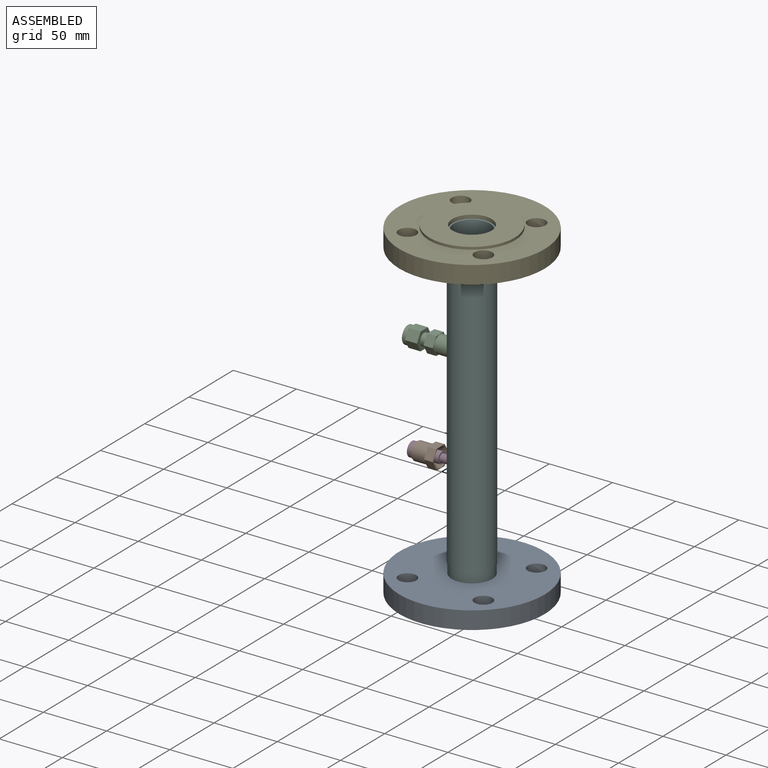
[diagram: assembled view]
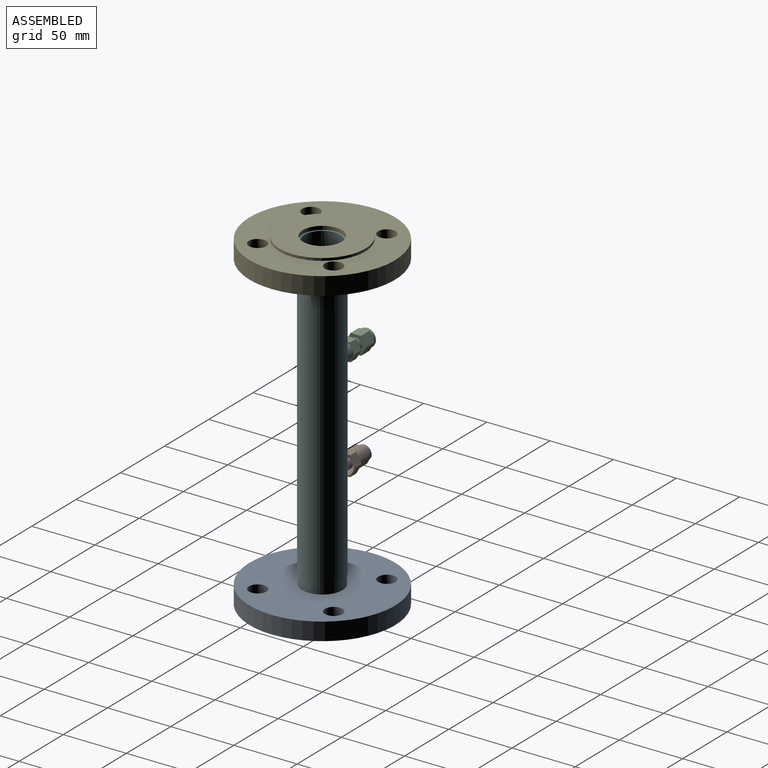
[diagram: assembled view, second angle]
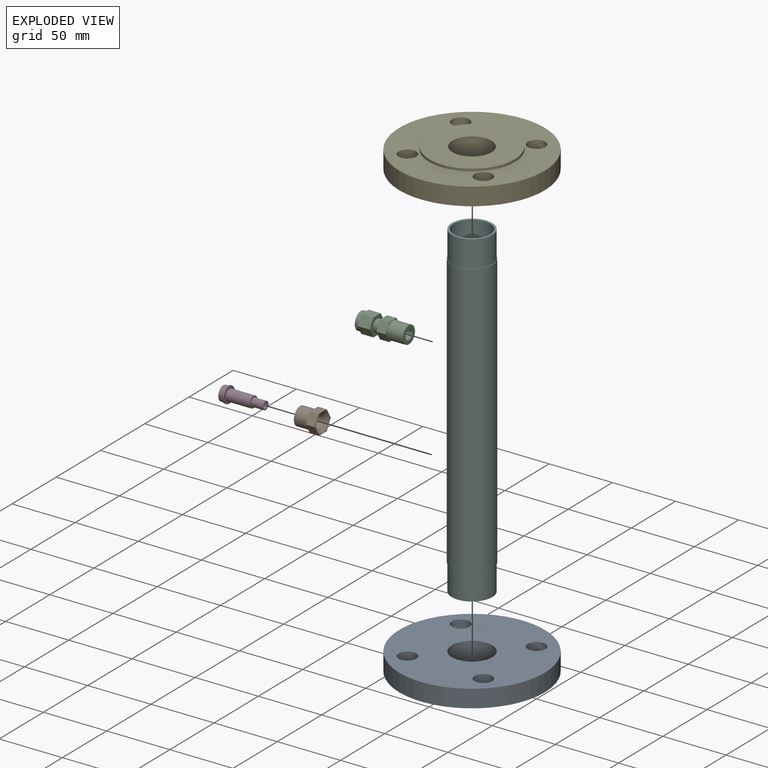
[diagram: exploded view]
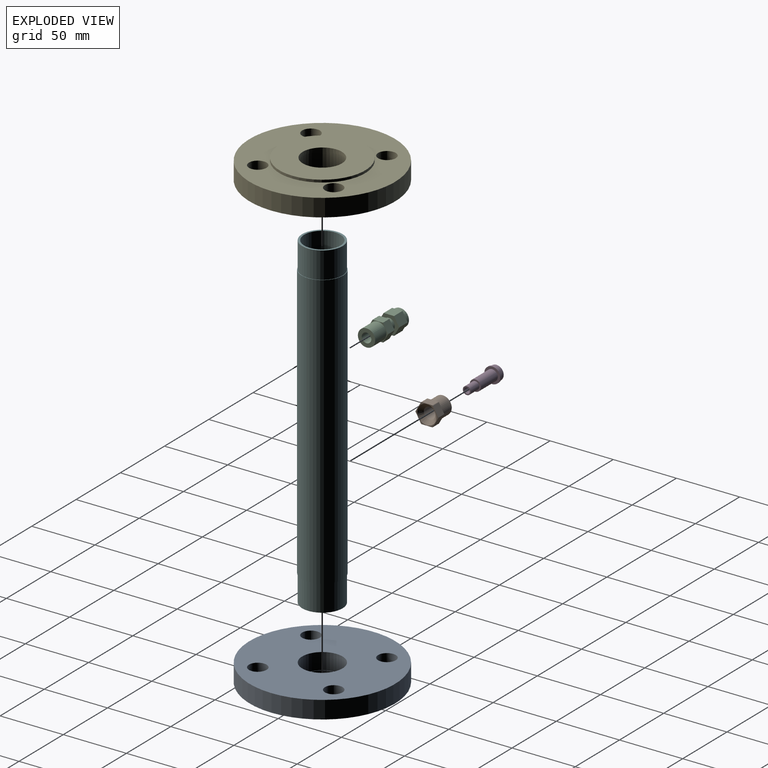
[diagram: exploded view, second angle]
ASSEMBLY  parts=6 mates=5
PART A: 12 faces, bbox 115x115x16 mm
  f0: cylinder r=15.5mm len=31mm, axis (0,0,1), area 292.2mm2, adj f1,f7
  f1: plane 68x68mm, normal (0,0,-1), area 2876.9mm2, adj f0,f2
  f2: cylinder r=34mm len=68mm, axis (0,0,1), area 427.3mm2, adj f1,f3
  f3: plane 115x115mm, normal (0,0,-1), area 6139.5mm2, adj f2,f4,f8,f9,f10,f11
  f4: cylinder r=57.5mm len=115mm, axis (0,0,1), area 5058mm2, adj f3,f5
  f5: plane 115x115mm, normal (0,0,1), area 8966.9mm2, adj f4,f6,f8,f9,f10,f11
  f6: cylinder r=16mm len=32mm, axis (0,0,1), area 1306.9mm2, adj f5,f7
  f7: plane 32x32mm, normal (0,0,1), area 49.5mm2, adj f0,f6
  f8: cylinder r=7mm len=14mm, axis (0,0,1), area 615.8mm2, adj f3,f5
  f9: cylinder r=7mm len=14mm, axis (0,0,1), area 615.8mm2, adj f3,f5
  f10: cylinder r=7mm len=14mm, axis (0,0,1), area 615.8mm2, adj f3,f5
  f11: cylinder r=7mm len=14mm, axis (0,0,1), area 615.8mm2, adj f3,f5
PART B: 18 faces, bbox 17.9x18x15.8 mm
  f0: cylinder r=9mm len=6.8mm, axis (-1,0,0), area 2.9mm2, adj f5,f8,f14,f17
  f1: cylinder r=9mm len=6.8mm, axis (-1,0,0), area 2.9mm2, adj f5,f8,f16,f17
  f2: cylinder r=9mm len=6.8mm, axis (-1,0,0), area 2.9mm2, adj f5,f8,f15,f16
  f3: cylinder r=9mm len=6.8mm, axis (-1,0,0), area 2.9mm2, adj f5,f8,f12,f14
  f4: cylinder r=9mm len=6.8mm, axis (-1,0,0), area 2.9mm2, adj f5,f8,f13,f15
  f5: plane 18x15.8mm, normal (-1,0,0), area 57.7mm2, adj f0,f1,f2,f3,f4,f9,f10,f12
  f6: cylinder r=4.58mm len=14.9mm, axis (-1,0,0), area 428.3mm2, adj f7,f11
  f7: cone r=7.58mm half-angle=45deg, axis (1,0,0), area 161.9mm2, adj f6,f8
  f8: plane 18x15.8mm, normal (1,0,0), area 35.8mm2, adj f0,f1,f2,f3,f4,f7,f9,f12
  f9: cylinder r=9mm len=6.8mm, axis (-1,0,0), area 2.9mm2, adj f5,f8,f12,f13
  f10: cylinder r=7.1mm len=14.2mm, axis (-1,0,0), area 495.2mm2, adj f5,f11
  f11: plane 14.2x14.2mm, normal (-1,0,0), area 92.6mm2, adj f6,f10
  f12: plane 8.62x6.8mm, normal (0,0,1), area 58.6mm2, adj f3,f5,f8,f9
  f13: plane 7.47x6.8mm, normal (0,-0.87,0.5), area 58.6mm2, adj f4,f5,f8,f9
  f14: plane 7.47x6.8mm, normal (0,0.87,0.5), area 58.6mm2, adj f0,f3,f5,f8
  f15: plane 7.47x6.8mm, normal (0,-0.87,-0.5), area 58.6mm2, adj f2,f4,f5,f8
  f16: plane 8.62x6.8mm, normal (0,0,-1), area 58.6mm2, adj f1,f2,f5,f8
  f17: plane 7.47x6.8mm, normal (0,0.87,-0.5), area 58.6mm2, adj f0,f1,f5,f8
PART C: 24 faces, bbox 16.4x14.2x38 mm
  f0: plane 13.9x13.9mm, normal (0,0,1), area 118.6mm2, adj f1,f11
  f1: cylinder r=3.25mm len=30.3mm, axis (0,0,-1), area 618.7mm2, adj f0,f2
  f2: plane 7.6x7.6mm, normal (0,0,-1), area 12.2mm2, adj f1,f3
  f3: cylinder r=3.8mm len=7.7mm, axis (0,0,-1), area 183.8mm2, adj f2,f4
  f4: plane 13.7x13.7mm, normal (0,0,-1), area 102mm2, adj f3,f5
  f5: cylinder r=6.85mm len=13.7mm, axis (0,0,-1), area 546.6mm2, adj f4,f6
  f6: plane 16.4x14.2mm, normal (0,0,-1), area 27.2mm2, adj f5,f18,f19,f20,f21,f22,f23
  f7: plane 16.4x14.2mm, normal (0,0,1), area 105.2mm2, adj f8,f18,f19,f20,f21,f22,f23
  f8: cylinder r=4.7mm len=9.4mm, axis (0,0,-1), area 153.6mm2, adj f7,f9
  f9: plane 16.4x14.2mm, normal (0,0,-1), area 105.2mm2, adj f8,f12,f13,f14,f15,f16,f17
  f10: plane 16.4x14.2mm, normal (0,0,1), area 22.9mm2, adj f11,f12,f13,f14,f15,f16,f17
  f11: cylinder r=6.95mm len=13.9mm, axis (0,0,-1), area 139.7mm2, adj f0,f10
  f12: plane 9.6x8.2mm, normal (0,1,0), area 78.7mm2, adj f9,f10,f13,f17
  f13: plane 9.6x7.1mm, normal (0.87,0.5,0), area 78.7mm2, adj f9,f10,f12,f14
  f14: plane 9.6x7.1mm, normal (0.87,-0.5,0), area 78.7mm2, adj f9,f10,f13,f15
  f15: plane 9.6x8.2mm, normal (0,-1,0), area 78.7mm2, adj f9,f10,f14,f16
  f16: plane 9.6x7.1mm, normal (-0.87,-0.5,0), area 78.7mm2, adj f9,f10,f15,f17
  f17: plane 9.6x7.1mm, normal (-0.87,0.5,0), area 78.7mm2, adj f9,f10,f12,f16
  f18: plane 7.3x7.1mm, normal (0.87,0.5,0), area 59.8mm2, adj f6,f7,f19,f23
  f19: plane 7.3x7.1mm, normal (0.87,-0.5,0), area 59.8mm2, adj f6,f7,f18,f20
  f20: plane 8.2x7.3mm, normal (0,-1,0), area 59.8mm2, adj f6,f7,f19,f21
  f21: plane 7.3x7.1mm, normal (-0.87,-0.5,0), area 59.8mm2, adj f6,f7,f20,f22
  f22: plane 7.3x7.1mm, normal (-0.87,0.5,0), area 59.8mm2, adj f6,f7,f21,f23
  f23: plane 8.2x7.3mm, normal (0,1,0), area 59.8mm2, adj f6,f7,f18,f22
PART D: 10 faces, bbox 12.6x12.6x33.6 mm
  f0: cylinder r=2.3mm len=33.55mm, axis (0,0,-1), area 484.8mm2, adj f1,f9
  f1: plane 6.35x6.35mm, normal (0,0,-1), area 15.1mm2, adj f0,f2
  f2: cylinder r=3.17mm len=9.55mm, axis (0,0,-1), area 190.5mm2, adj f1,f3
  f3: plane 8.8x8.8mm, normal (0,0,-1), area 29.2mm2, adj f2,f4
  f4: cylinder r=4.4mm len=19.15mm, axis (0,0,-1), area 529.4mm2, adj f3,f5
  f5: plane 12.6x12.6mm, normal (0,0,-1), area 63.9mm2, adj f4,f6
  f6: cylinder r=6.3mm len=12.6mm, axis (0,0,-1), area 59.4mm2, adj f5,f7
  f7: plane 12.6x12.6mm, normal (0,0,1), area 23.5mm2, adj f6,f8
  f8: cylinder r=5.68mm len=11.35mm, axis (0,0,-1), area 119.5mm2, adj f7,f9
  f9: plane 11.35x11.35mm, normal (0,0,1), area 84.6mm2, adj f0,f8
PART E: same geometry as A
PART F: 12 faces, bbox 259x32.8x32.8 mm
  f0: cylinder r=14.4mm len=259mm, axis (-1,0,0), area 23249.4mm2, adj f2,f3,f8,f9
  f1: cylinder r=16.4mm len=217mm, axis (-1,0,0), area 22105.6mm2, adj f5,f6,f10,f11
  f2: plane 32x32mm, normal (-1,0,0), area 152.8mm2, adj f0,f7
  f3: plane 32x32mm, normal (1,0,0), area 152.8mm2, adj f0,f4
  f4: cylinder r=16mm len=32mm, axis (-1,0,0), area 2111.2mm2, adj f3,f5
  f5: plane 32.8x32.8mm, normal (1,0,0), area 40.7mm2, adj f1,f4
  f6: plane 32.8x32.8mm, normal (-1,0,0), area 40.7mm2, adj f1,f7
  f7: cylinder r=16mm len=32mm, axis (-1,0,0), area 2111.2mm2, adj f2,f6
  f8: cylinder r=6.85mm len=13.7mm, axis (0,1,0), area 59.1mm2, adj f0,f10
  f9: cylinder r=3.17mm len=6.35mm, axis (0,1,0), area 26.6mm2, adj f0,f11
  f10: bspline ~15.94x15.46mm, area 52.3mm2, adj f1,f8
  f11: bspline ~8.36x8.12mm, area 24.6mm2, adj f1,f9
PLACE A t=(-0.62,-0.46,-8.15)mm fixed
PLACE B t=(-43.37,-0.46,83.85)mm
PLACE C rot(axis=(-0.58,-0.58,0.58),120deg) t=(-13.24,-0.46,164.85)mm
PLACE D rot(axis=(-0.58,-0.58,0.58),120deg) t=(-14.67,-0.46,83.85)mm
PLACE E rot(axis=(1,0,0),180deg) t=(-0.62,-0.46,256.85)mm
PLACE F rot(axis=(-0.58,-0.58,-0.58),120deg) t=(-0.62,-0.46,-5.15)mm
MATE fastened C.f1 <-> F.f8  axis (1,0,0) through (-19.59,-0.46,164.85)mm
MATE fastened D.f0 <-> B.f0  axis (1,0,0) through (-43.37,-0.46,83.85)mm
MATE fastened F.f0 <-> A.f0  axis (0,0,1) through (-0.62,-0.46,-5.15)mm
MATE fastened E.f0 <-> F.f0  axis (0,0,1) through (-0.62,-0.46,253.85)mm
MATE fastened D.f0 <-> F.f9  axis (1,0,0) through (-19.44,-0.46,83.85)mm
